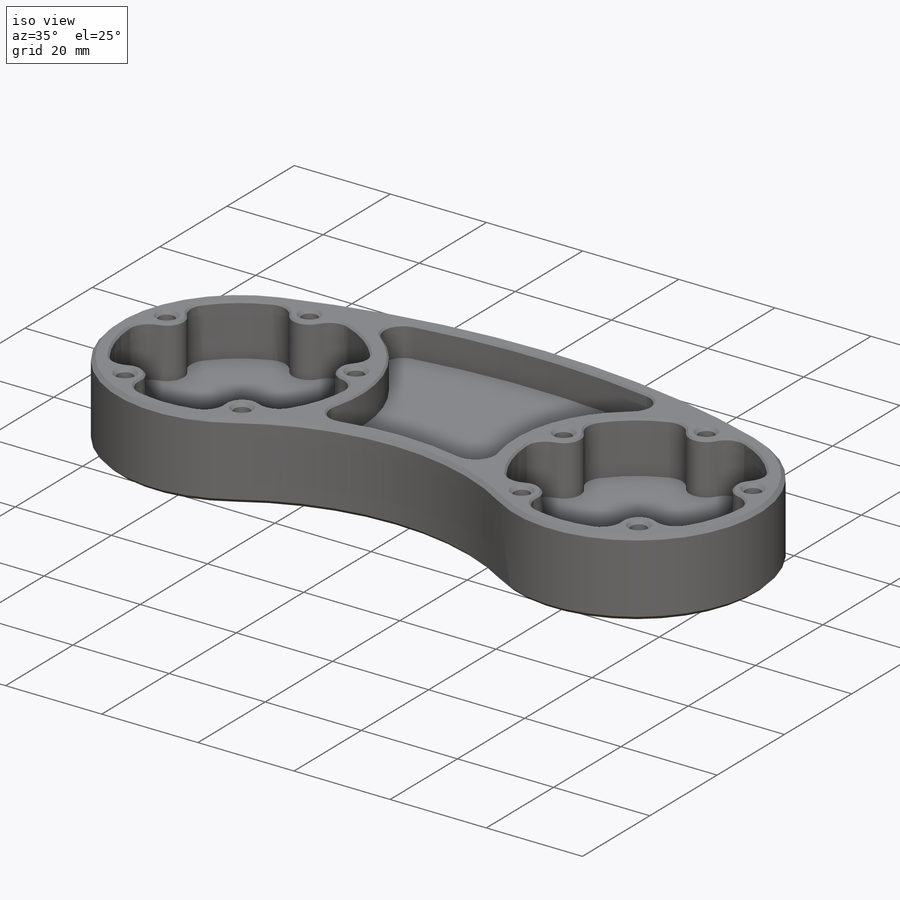
[diagram: iso view]
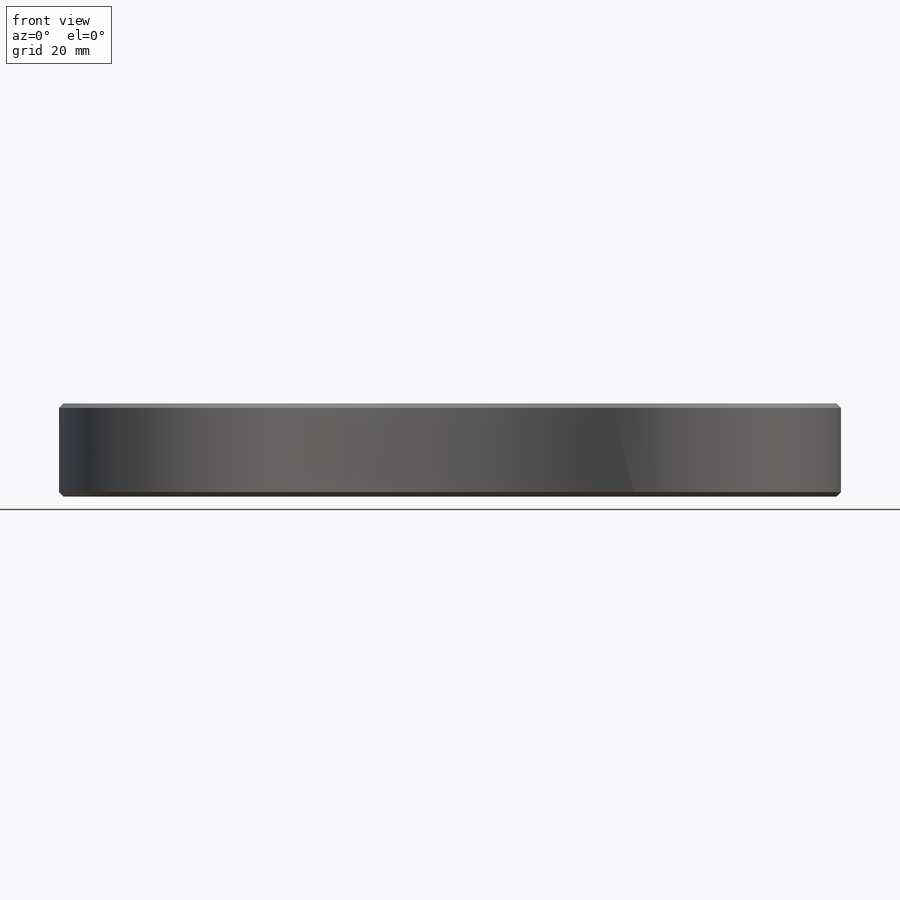
[diagram: front view]
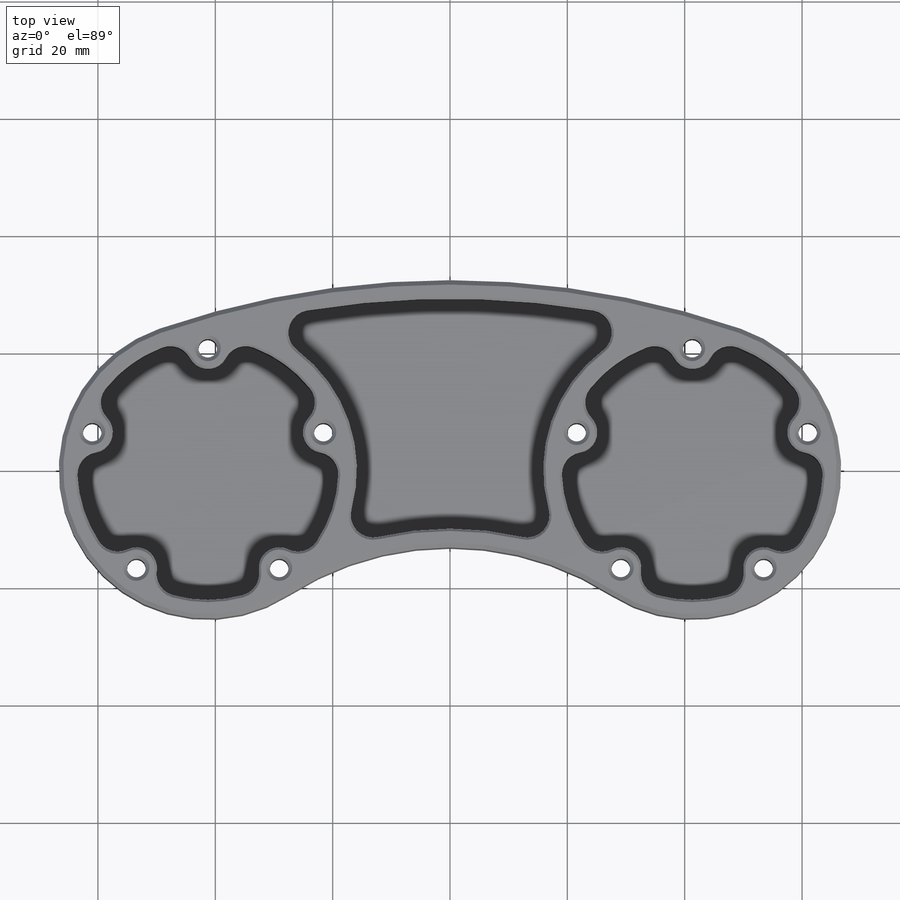
[diagram: top view]
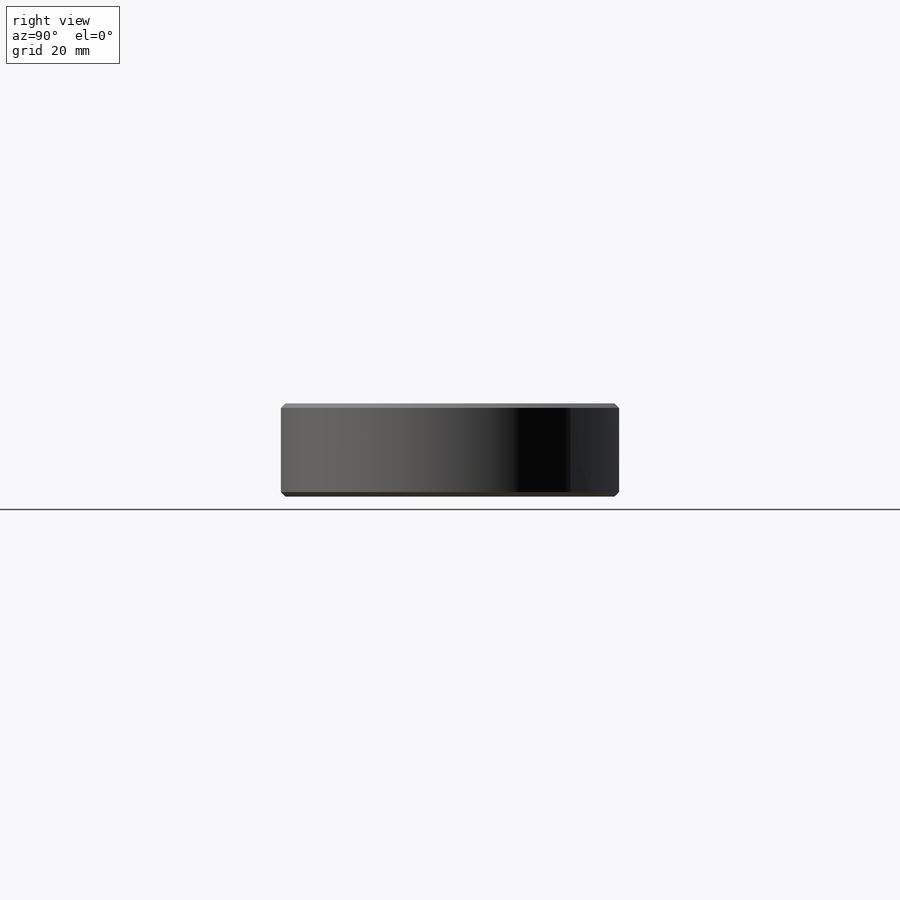
[diagram: right view]
SOLIDWORKS PART (.sldprt)
format: sldprt  version: not decoded by parser v0  size: 599,552 bytes
history: native  units: mm
features: sketch x7, cut_extrude x3, extrude x2, mirror x2, chamfer x2, material x1, fillet x1, hole x1, pattern_circular x1 (+13 scaffold rows collapsed)
feature tree (33):
  scaffold x13  (default folders/planes/origin — collapsed)
  material  "Material <not specified>"
  sketch  "Sketch1"  dims[c1.D1=~51.857721mm c1.D2=50.8mm c1.D3=50.8mm c1.D4=~151.675156mm c2.D4=152.4mm c2.D1=82.55mm]
  extrude  "Boss-Extrude1"  Depth=15.875mm
  sketch  "Sketch2"  dims[D1=3.175mm]
  cut_extrude  "Cut-Extrude1"  Depth=5.08mm
  sketch  "Sketch3"  dims[D4=3.81mm D1=3.175mm D2=3.175mm D3=3.175mm]
  cut_extrude  "Cut-Extrude2"  Depth=1.5875mm
  mirror  "Mirror1"
  sketch  "Sketch4"  dims[D2=6.985mm D1=1.524mm]
  extrude  "Boss-Extrude2"  [1 undecoded]
  fillet  "Fillet1"  Radius=3.81mm
  hole  "1/8 (0.125) Diameter Hole1"  Diameter=3.175mm Depth=15.875mm
  sketch  "Sketch6"
  sketch  "Sketch5"  dims[hole-wizard template sketch: 47 standard entries collapsed; hole parameters kept: c15.Thru Hole Depth=15.875mm c15.Near C'Sink Dia.=4.445mm c15.D4=~3.666174mm c15.Near C'Sink Angle=90.0deg c15.Far C'Sink Dia.=4.445mm c15.D6=~9.919017mm c15.Far C'Sink Angle=90.0deg]
  pattern_circular  "CirPattern1"  Count=5 Angle=120deg
  sketch  "Sketch7"
  cut_extrude  "Cut-Extrude3"  [1 undecoded]
  mirror  "Mirror8"
  chamfer  "Chamfer1"  Distance=0.381mm Angle=45deg
  chamfer  "Chamfer2"  Distance=0.762mm Angle=45deg
decode coverage: 13 of 19 modeling features carry decoded parameters
note: ~ marks probable driven/reference dimensions
note: 2 parameter values undecoded
note: suppression state not decoded; provenance and decode notes live in map.json
